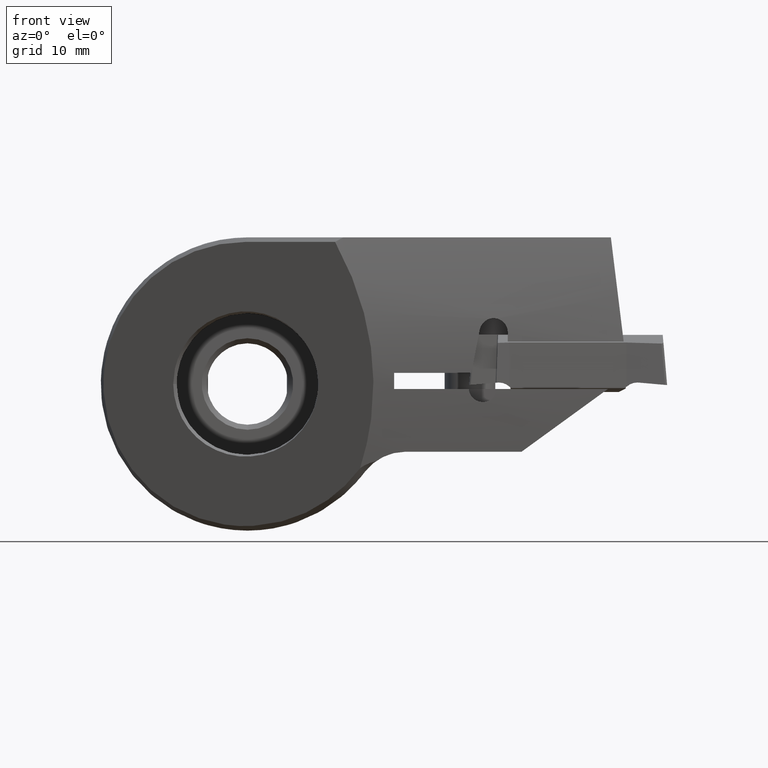
[diagram: clean part render]
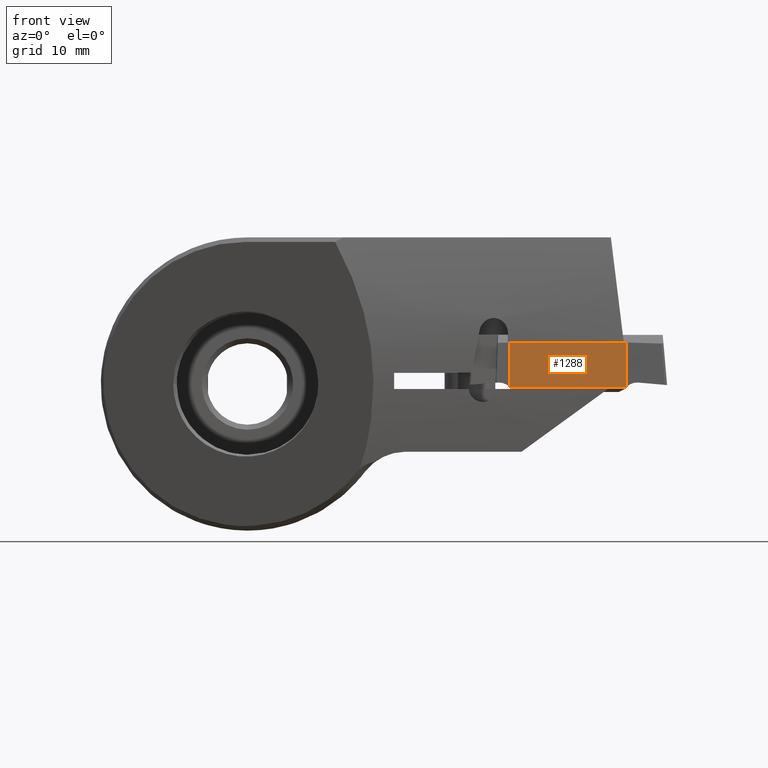
[diagram: same view with one face highlighted and labeled with its STEP entity id]
A machine part, front view. The second image highlights one B-rep face of the part: STEP entity #1288.
In plain terms, the highlighted planar face has unit normal (-0, -0.9994, 0.0349).
Its self-contained STEP definition (entity closure, byte-faithful):
#786=VERTEX_POINT('NONE',#2257);
#904=VERTEX_POINT('NONE',#2385);
#1020=EDGE_CURVE('NONE',#1254,#1940,#2517,.T.);
#1216=EDGE_CURVE('NONE',#1532,#1508,#2726,.T.);
#1254=VERTEX_POINT('NONE',#2769);
#1288=ADVANCED_FACE('NONE',(#2805),#2806,.T.);
#1508=VERTEX_POINT('NONE',#3049);
#1532=VERTEX_POINT('NONE',#3075);
#1572=EDGE_CURVE('NONE',#1940,#1508,#3116,.T.);
#1910=EDGE_CURVE('NONE',#904,#1532,#3491,.T.);
#1940=VERTEX_POINT('NONE',#3525);
#2084=EDGE_CURVE('NONE',#904,#786,#3682,.T.);
#2104=EDGE_CURVE('NONE',#1254,#786,#3705,.T.);
#2257=CARTESIAN_POINT('',(25.8940976288628,-35.245291808623,-0.235962486715223));
#2385=CARTESIAN_POINT('',(25.8903149583606,-35.0938904808033,4.09960428409841));
#2517=LINE('',#4437,#4438);
#2726=LINE('',#4813,#4814);
#2769=CARTESIAN_POINT('',(25.9728658195621,-35.2477568135664,-0.306550992617235));
#2805=FACE_OUTER_BOUND('',#4932,.T.);
#2806=PLANE('',#4933);
#3049=CARTESIAN_POINT('',(37.5042208021747,-35.245291808623,-0.235962486715223));
#3075=CARTESIAN_POINT('',(37.5080034726769,-35.0938904808033,4.09960428409841));
#3116=(B_SPLINE_CURVE(3,(#5418,#5419,#5420,#5421),.UNSPECIFIED.,.F.,.F.)B_SPLINE_CURVE_WITH_KNOTS((4,4),(5.52004830039419,5.58494888979566),.UNSPECIFIED.)RATIONAL_B_SPLINE_CURVE((1.0,0.999649023591712,0.999649023591712,1.0))BOUNDED_CURVE()REPRESENTATION_ITEM('')GEOMETRIC_REPRESENTATION_ITEM()CURVE());
#3491=LINE('',#6147,#6148);
#3525=CARTESIAN_POINT('',(37.4254526114754,-35.2477568135664,-0.306550992617236));
#3682=LINE('',#6582,#6583);
#3705=(B_SPLINE_CURVE(3,(#6618,#6619,#6620,#6621),.UNSPECIFIED.,.F.,.F.)B_SPLINE_CURVE_WITH_KNOTS((4,4),(5.52004830039419,5.58494888979566),.UNSPECIFIED.)RATIONAL_B_SPLINE_CURVE((1.0,0.999649023591712,0.999649023591712,1.0))BOUNDED_CURVE()REPRESENTATION_ITEM('')GEOMETRIC_REPRESENTATION_ITEM()CURVE());
#4437=CARTESIAN_POINT('',(25.8941592155187,-35.2477568135664,-0.306550992617235));
#4438=VECTOR('',#7274,1000.0);
#4813=CARTESIAN_POINT('',(37.5041503886255,-35.2481101098313,-0.316668073943913));
#4814=VECTOR('',#7439,1000.0);
#4932=EDGE_LOOP('',(#7520,#7521,#7522,#7523,#7524,#7525));
#4933=AXIS2_PLACEMENT_3D('',#7526,#7527,#7528);
#5418=CARTESIAN_POINT('',(37.4254526114754,-35.2477568135664,-0.306550992617236));
#5419=CARTESIAN_POINT('',(37.4509403924871,-35.2469055311834,-0.282173454683095));
#5420=CARTESIAN_POINT('',(37.4772056745479,-35.2460835743815,-0.258635691516182));
#5421=CARTESIAN_POINT('',(37.5042208021747,-35.245291808623,-0.235962486715223));
#6147=CARTESIAN_POINT('',(45.1019367801637,-35.0938904808033,4.09960428409841));
#6148=VECTOR('',#8275,1000.0);
#6582=CARTESIAN_POINT('',(25.8941592155187,-35.2477568135664,-0.306550992617235));
#6583=VECTOR('',#8490,1000.0);
#6618=CARTESIAN_POINT('',(25.9728658195621,-35.2477568135664,-0.306550992617235));
#6619=CARTESIAN_POINT('',(25.9473780385503,-35.2469055311834,-0.282173454683094));
#6620=CARTESIAN_POINT('',(25.9211127564895,-35.2460835743815,-0.258635691516181));
#6621=CARTESIAN_POINT('',(25.8940976288628,-35.245291808623,-0.235962486715223));
#7274=DIRECTION('',(1.0,-1.66168753179145E-016,-8.03753070486966E-017));
#7439=DIRECTION('',(-0.000871942462032245,-0.0348994834357397,-0.999390447108767));
#7520=ORIENTED_EDGE('',*,*,#2104,.F.);
#7521=ORIENTED_EDGE('',*,*,#1020,.T.);
#7522=ORIENTED_EDGE('',*,*,#1572,.T.);
#7523=ORIENTED_EDGE('',*,*,#1216,.F.);
#7524=ORIENTED_EDGE('',*,*,#1910,.F.);
#7525=ORIENTED_EDGE('',*,*,#2084,.T.);
#7526=CARTESIAN_POINT('',(25.8941592155187,-35.2477568135664,-0.306550992617235));
#7527=DIRECTION('',(-1.6326246990113E-016,-0.999390827019096,0.0348994967025007));
#7528=DIRECTION('',(-1.0,1.66168753179145E-016,8.03753070486966E-017));
#8275=DIRECTION('',(1.0,-1.66168753179145E-016,-8.03753070486966E-017));
#8490=DIRECTION('',(0.000871942462032061,-0.0348994834357397,-0.999390447108767));